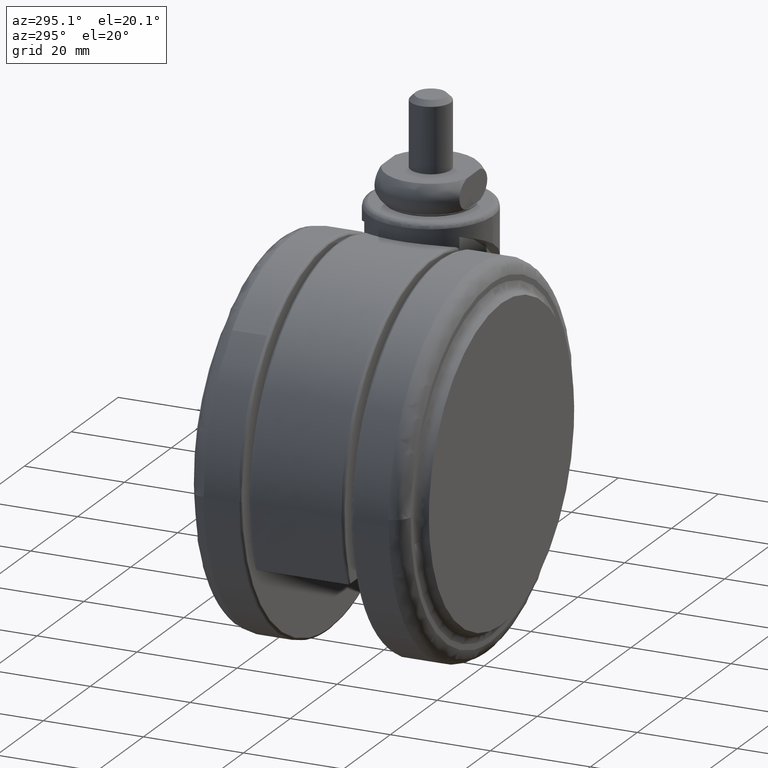
[diagram: clean part render]
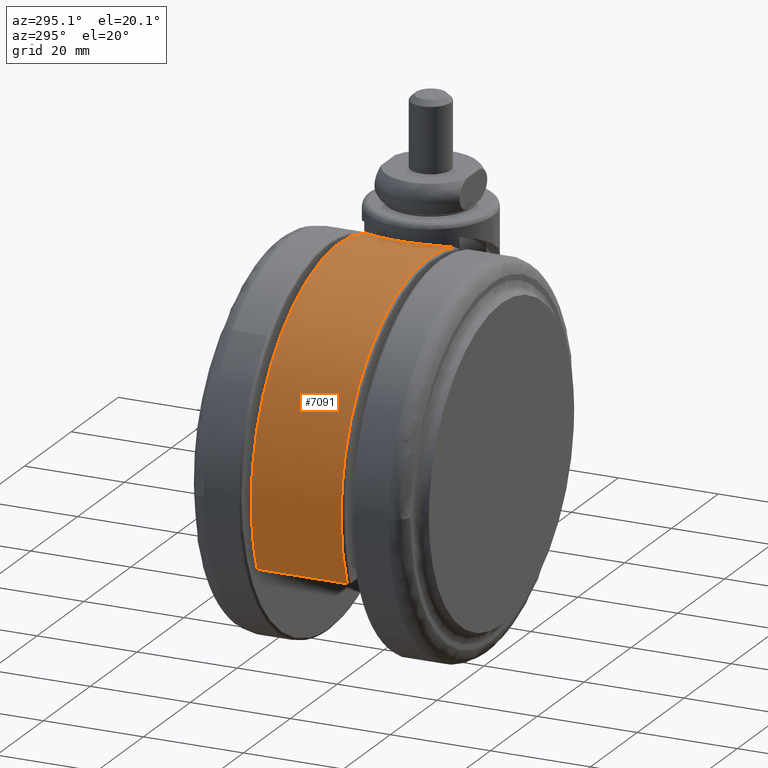
[diagram: same view with one face highlighted and labeled with its STEP entity id]
A machine part, auxiliary view. The second image highlights one B-rep face of the part: STEP entity #7091.
In plain terms, the highlighted face is a freeform B-spline surface patch.
Its self-contained STEP definition (entity closure, byte-faithful):
#5652=CARTESIAN_POINT('',(-8.674675786448901,-8.999999999999810,-4.751055519666890));
#5653=VERTEX_POINT('',#5652);
#5675=CARTESIAN_POINT('',(-54.869513614197501,-8.999999999999799,-54.297355554936097));
#5676=VERTEX_POINT('',#5675);
#5677=CARTESIAN_POINT('',(-54.869513614197501,-8.999999999999799,-54.297355554936097));
#5678=CARTESIAN_POINT('',(-55.720248823207811,-8.999999999999814,-52.147973614396392));
#5679=CARTESIAN_POINT('',(-56.975744369376528,-8.999999999999773,-47.850427429676017));
#5680=CARTESIAN_POINT('',(-57.595306881068673,-8.999999999999831,-42.027690033489037));
#5681=CARTESIAN_POINT('',(-57.427733159560837,-8.999999999999757,-37.234977341685727));
#5682=CARTESIAN_POINT('',(-56.925823505620542,-8.999999999999826,-33.688220369290867));
#5683=CARTESIAN_POINT('',(-56.064490506159821,-8.999999999999998,-29.986789896995379));
#5684=CARTESIAN_POINT('',(-54.813833322030128,-8.999999999999153,-26.334433439819520));
#5685=CARTESIAN_POINT('',(-52.814269493395777,-9.000000000000316,-22.158797817862439));
#5686=CARTESIAN_POINT('',(-50.055825268455251,-8.999999999999517,-17.832940092839191));
#5687=CARTESIAN_POINT('',(-46.379302779214413,-8.999999999999895,-13.637564030287310));
#5688=CARTESIAN_POINT('',(-42.445029253030732,-8.999999999999782,-10.343380855342060));
#5689=CARTESIAN_POINT('',(-38.932532660018893,-8.999999999999801,-8.062105824059874));
#5690=CARTESIAN_POINT('',(-35.656721885519573,-8.999999999999798,-6.360200248944931));
#5691=CARTESIAN_POINT('',(-32.435457289783542,-8.999999999999801,-5.065068195586559));
#5692=CARTESIAN_POINT('',(-28.529055851854380,-8.999999999999799,-3.900057964833836));
#5693=CARTESIAN_POINT('',(-24.130107418665329,-8.999999999999805,-3.110717135898655));
#5694=CARTESIAN_POINT('',(-19.390446971807918,-8.999999999999849,-2.916146345884326));
#5695=CARTESIAN_POINT('',(-14.225284200919051,-8.999999999999433,-3.319011138755044));
#5696=CARTESIAN_POINT('',(-10.773354734251150,-9.000000000000510,-4.085949346466580));
#5697=CARTESIAN_POINT('',(-8.674675786448901,-8.999999999999810,-4.751055519666890));
#5698=B_SPLINE_CURVE_WITH_KNOTS('',3,(#5677,#5678,#5679,#5680,#5681,#5682,#5683,#5684,#5685,#5686,#5687,#5688,#5689,#5690,#5691,#5692,#5693,#5694,#5695,#5696,#5697),.UNSPECIFIED.,.F.,.U.,(4,1,1,1,1,1,1,1,1,1,1,1,1,1,1,1,1,1,4),(0.000000086136822,6.934819541731670,13.374340462885900,17.502254621349490,21.299915373167089,24.106887325080439,28.895248600238169,32.858019113649981,37.976619856811752,44.250964111092713,49.534640390614697,53.332333627842161,56.799765716631271,60.597423577270192,63.734626075042947,69.018338266588913,73.971826449717895,77.934596225441993,84.539192122613500),.UNSPECIFIED.);
#5699=EDGE_CURVE('',#5676,#5653,#5698,.T.);
#5972=CARTESIAN_POINT('',(-8.674675786448539,9.000000000000231,-4.751055519667011));
#5973=VERTEX_POINT('',#5972);
#5995=CARTESIAN_POINT('',(-8.674675786448901,-8.999999999999810,-4.751055519666890));
#5996=CARTESIAN_POINT('',(-8.970850773073885,-8.714530890552302,-4.657226798393186));
#5997=CARTESIAN_POINT('',(-9.252655060606976,-8.414769664938927,-4.571988486004324));
#5998=CARTESIAN_POINT('',(-9.787020634850826,-7.786796599215655,-4.416451295872517));
#5999=CARTESIAN_POINT('',(-10.039585289135321,-7.458586998773201,-4.346154862904913));
#6000=CARTESIAN_POINT('',(-10.395563625991480,-6.944472989146506,-4.250587635245981));
#6001=CARTESIAN_POINT('',(-10.510405481264909,-6.769462337275924,-4.220381529327296));
#6002=CARTESIAN_POINT('',(-10.676762380754180,-6.501369547565522,-4.177410328805453));
#6003=CARTESIAN_POINT('',(-10.731302316806341,-6.410947599218801,-4.163458298947532));
#6004=CARTESIAN_POINT('',(-10.837832752653661,-6.229163648526988,-4.136450793873014));
#6005=CARTESIAN_POINT('',(-10.889864577870640,-6.137742640001775,-4.123384241108742));
#6006=CARTESIAN_POINT('',(-11.143905993339111,-5.678021049604253,-4.060139097162558));
#6007=CARTESIAN_POINT('',(-11.327606335155689,-5.301890920254538,-4.016194059839395));
#6008=CARTESIAN_POINT('',(-11.656485337909800,-4.533327936696246,-3.939580543423517));
#6009=CARTESIAN_POINT('',(-11.801664357991269,-4.140894919904614,-3.906915356761662));
#6010=CARTESIAN_POINT('',(-11.990115935593529,-3.539942505199687,-3.865373005497649));
#6011=CARTESIAN_POINT('',(-12.048038310060241,-3.337570659335289,-3.852773124003085));
#6012=CARTESIAN_POINT('',(-12.127443571529581,-3.030884965822633,-3.835663262711155));
#6013=CARTESIAN_POINT('',(-12.152665006436409,-2.928134813592185,-3.830258609184464));
#6014=CARTESIAN_POINT('',(-12.200583640071700,-2.721580255448937,-3.820036741907980));
#6015=CARTESIAN_POINT('',(-12.223307283977411,-2.617635798980999,-3.815213970681946));
#6016=CARTESIAN_POINT('',(-12.329993050254011,-2.097951747530207,-3.792662814478638));
#6017=CARTESIAN_POINT('',(-12.393564986314480,-1.681081739534984,-3.779514913835495));
#6018=CARTESIAN_POINT('',(-12.478468457459790,-0.845170894659355,-3.762029971224271));
#6019=CARTESIAN_POINT('',(-12.499796753707949,-0.426129873382842,-3.757695345736333));
#6020=CARTESIAN_POINT('',(-12.500200362179401,0.414121308757823,-3.757612959485591));
#6021=CARTESIAN_POINT('',(-12.479279146333710,0.835331283150746,-3.761863694447446));
#6022=CARTESIAN_POINT('',(-12.425893495955870,1.363243366005219,-3.772857046856367));
#6023=CARTESIAN_POINT('',(-12.413831054348490,1.469036653888233,-3.775345785669010));
#6024=CARTESIAN_POINT('',(-12.387089511722520,1.679667694798051,-3.780879907987707));
#6025=CARTESIAN_POINT('',(-12.343037434420051,1.994427631348166,-3.790019459617555));
#6026=CARTESIAN_POINT('',(-12.287314187957159,2.305669606718565,-3.801684754395490));
#6027=CARTESIAN_POINT('',(-12.160581555255730,2.923536453278747,-3.828471866413233));
#6028=CARTESIAN_POINT('',(-12.055748647585631,3.329303534445367,-3.850917721061410));
#6029=CARTESIAN_POINT('',(-11.805917665054890,4.128637252675255,-3.905965293139805));
#6030=CARTESIAN_POINT('',(-11.660919630663960,4.522204078569321,-3.938564243392174));
#6031=CARTESIAN_POINT('',(-11.454149908147880,5.006349558734460,-3.986711335706703));
#6032=CARTESIAN_POINT('',(-11.411516891210031,5.102787030261968,-3.996712543817837));
#6033=CARTESIAN_POINT('',(-11.323670101600809,5.294870032842502,-4.017492729901623));
#6034=CARTESIAN_POINT('',(-11.278386299924250,5.390655162707557,-4.028288658922895));
#6035=CARTESIAN_POINT('',(-11.139302021640891,5.675437685751141,-4.061735413755931));
#6036=CARTESIAN_POINT('',(-11.042230041583270,5.861998752422219,-4.085452698476276));
#6037=CARTESIAN_POINT('',(-10.738328079956419,6.412004733762562,-4.161108651242706));
#6038=CARTESIAN_POINT('',(-10.518840342388611,6.765795050788595,-4.217535803243282));
#6039=CARTESIAN_POINT('',(-10.047267744207440,7.448113566141866,-4.344050043090325));
#6040=CARTESIAN_POINT('',(-9.795179665873153,7.776640005527839,-4.414134610090460));
#6041=CARTESIAN_POINT('',(-9.392821365606080,8.250322745771342,-4.531162499106678));
#6042=CARTESIAN_POINT('',(-9.254657744481564,8.405027162898973,-4.572159670522938));
#6043=CARTESIAN_POINT('',(-9.041315848997629,8.632230338261671,-4.636888528590841));
#6044=CARTESIAN_POINT('',(-8.969114336917484,8.707226228021488,-4.659026187830642));
#6045=CARTESIAN_POINT('',(-8.823099583061481,8.855151852002560,-4.704291606584337));
#6046=CARTESIAN_POINT('',(-8.749285816400112,8.928086908861664,-4.727418939872294));
#6047=CARTESIAN_POINT('',(-8.674675786448525,9.000000000000235,-4.751055519666958));
#6048=B_SPLINE_CURVE_WITH_KNOTS('',3,(#5995,#5996,#5997,#5998,#5999,#6000,#6001,#6002,#6003,#6004,#6005,#6006,#6007,#6008,#6009,#6010,#6011,#6012,#6013,#6014,#6015,#6016,#6017,#6018,#6019,#6020,#6021,#6022,#6023,#6024,#6025,#6026,#6027,#6028,#6029,#6030,#6031,#6032,#6033,#6034,#6035,#6036,#6037,#6038,#6039,#6040,#6041,#6042,#6043,#6044,#6045,#6046,#6047),.UNSPECIFIED.,.F.,.U.,(4,2,2,2,2,2,2,2,2,2,2,2,2,2,2,1,2,2,2,2,2,2,2,2,2,2,4),(0.0,0.062500000000000,0.125000000000001,0.156250000000001,0.171875000000001,0.187500000000001,0.250000000000001,0.312500000000001,0.343750000000001,0.359375000000001,0.375000000000001,0.437500000000001,0.500000000000001,0.562500000000001,0.578125000000001,0.593750000000001,0.625000000000001,0.687500000000000,0.750000000000000,0.765625000000000,0.781250000000000,0.812500000000000,0.875000000000000,0.937500000000000,0.968750000000000,0.984375000000000,1.0),.UNSPECIFIED.);
#6049=EDGE_CURVE('',#5653,#5973,#6048,.T.);
#6338=CARTESIAN_POINT('',(-54.869513614197501,9.000000000000199,-54.297355554936097));
#6339=VERTEX_POINT('',#6338);
#6340=CARTESIAN_POINT('',(-54.869513614197501,9.000000000000199,-54.297355554936097));
#6341=CARTESIAN_POINT('',(-54.869513614197501,-8.999999999999799,-54.297355554936097));
#6342=QUASI_UNIFORM_CURVE('',1,(#6340,#6341),.UNSPECIFIED.,.F.,.U.);
#6343=EDGE_CURVE('',#6339,#5676,#6342,.T.);
#7042=CARTESIAN_POINT('',(-54.278763357156762,9.450000000000230,-55.705800955690449));
#7043=CARTESIAN_POINT('',(-54.278763357156762,-9.461249999999813,-55.705800955690449));
#7044=CARTESIAN_POINT('',(-64.535205607180686,9.450000000000230,-32.584483124462416));
#7045=CARTESIAN_POINT('',(-64.535205607180686,-9.461249999999813,-32.584483124462416));
#7046=CARTESIAN_POINT('',(-46.939623909607377,9.450000000000230,-14.413477356900669));
#7047=CARTESIAN_POINT('',(-46.939623909607377,-9.461249999999813,-14.413477356900669));
#7048=CARTESIAN_POINT('',(-29.344042212034061,9.450000000000230,3.757528410661074));
#7049=CARTESIAN_POINT('',(-29.344042212034061,-9.461249999999813,3.757528410661074));
#7050=CARTESIAN_POINT('',(-5.904758124211526,9.450000000000230,-5.749832281512582));
#7051=CARTESIAN_POINT('',(-5.904758124211526,-9.461249999999813,-5.749832281512582));
#7059=(BOUNDED_SURFACE()B_SPLINE_SURFACE(1,2,((#7042,#7044,#7046,#7048,#7050),(#7043,#7045,#7047,#7049,#7051)),.UNSPECIFIED.,.F.,.F.,.U.)B_SPLINE_SURFACE_WITH_KNOTS((2,2),(3,2,3),(0.0,18.911250000000049),(0.0,45.859602218799047,91.719204437598108),.UNSPECIFIED.)GEOMETRIC_REPRESENTATION_ITEM()RATIONAL_B_SPLINE_SURFACE(((1.0,0.829037572555042,1.0,0.829037572555042,1.0),(1.0,0.829037572555042,1.0,0.829037572555042,1.0)))REPRESENTATION_ITEM('')SURFACE());
#7060=ORIENTED_EDGE('',*,*,#6049,.T.);
#7061=CARTESIAN_POINT('',(-8.674675786448539,9.000000000000231,-4.751055519667011));
#7062=CARTESIAN_POINT('',(-11.193065276506051,9.000000000000231,-3.952718267834507));
#7063=CARTESIAN_POINT('',(-14.880822962467080,9.000000000000227,-3.201614730824559));
#7064=CARTESIAN_POINT('',(-20.217696962705379,9.000000000000233,-2.927015003761376));
#7065=CARTESIAN_POINT('',(-23.851834644784709,9.000000000000179,-3.132390643877163));
#7066=CARTESIAN_POINT('',(-27.822572499999900,9.000000000000222,-3.763932563994802));
#7067=CARTESIAN_POINT('',(-31.237519670550721,9.000000000000156,-4.652636631785780));
#7068=CARTESIAN_POINT('',(-34.900957610621717,9.000000000000167,-6.023507991769993));
#7069=CARTESIAN_POINT('',(-38.515197539616267,9.000000000000178,-7.791366518356942));
#7070=CARTESIAN_POINT('',(-41.993941951420680,9.000000000000195,-10.029097805621550));
#7071=CARTESIAN_POINT('',(-44.983720735573932,9.000000000000215,-12.466197608393101));
#7072=CARTESIAN_POINT('',(-47.780268144973483,9.000000000000194,-15.200489061866239));
#7073=CARTESIAN_POINT('',(-50.058998224546500,9.000000000000188,-17.968453019356598));
#7074=CARTESIAN_POINT('',(-52.256812253591853,9.000000000000256,-21.268836513863722));
#7075=CARTESIAN_POINT('',(-53.906732737412241,9.000000000000146,-24.325011993939292));
#7076=CARTESIAN_POINT('',(-55.336534784828288,8.999999999999979,-27.788083051354992));
#7077=CARTESIAN_POINT('',(-56.440506628694791,8.999999999999755,-31.368377148613568));
#7078=CARTESIAN_POINT('',(-57.190608980662738,9.000000000000449,-35.153794565406187));
#7079=CARTESIAN_POINT('',(-57.514110344526500,9.000000000000142,-38.831902798160641));
#7080=CARTESIAN_POINT('',(-57.503342198303528,9.000000000000057,-43.183369834814243));
#7081=CARTESIAN_POINT('',(-56.851805502954321,9.000000000000972,-48.334047308753732));
#7082=CARTESIAN_POINT('',(-55.639177817330683,8.999999999998630,-52.352658450936197));
#7083=CARTESIAN_POINT('',(-54.869513614197501,9.000000000000199,-54.297355554936097));
#7084=B_SPLINE_CURVE_WITH_KNOTS('',3,(#7061,#7062,#7063,#7064,#7065,#7066,#7067,#7068,#7069,#7070,#7071,#7072,#7073,#7074,#7075,#7076,#7077,#7078,#7079,#7080,#7081,#7082,#7083),.UNSPECIFIED.,.F.,.U.,(4,1,1,1,1,1,1,1,1,1,1,1,1,1,1,1,1,1,1,1,4),(0.000000085778183,7.925545410598019,11.227830890532530,16.016199823726250,18.823178822191220,23.281308409502660,26.583619170975521,30.546397515566309,35.334784314543931,38.967324098890060,42.104532492491522,47.057933717865112,49.699781096079647,53.992775350349604,57.460213862887450,60.927652661224862,65.220672263432007,69.018338266529256,71.990407226957274,78.264813851049055,84.539192122615219),.UNSPECIFIED.);
#7085=EDGE_CURVE('',#5973,#6339,#7084,.T.);
#7086=ORIENTED_EDGE('',*,*,#7085,.T.);
#7087=ORIENTED_EDGE('',*,*,#6343,.T.);
#7088=ORIENTED_EDGE('',*,*,#5699,.T.);
#7089=EDGE_LOOP('',(#7060,#7086,#7087,#7088));
#7090=FACE_OUTER_BOUND('',#7089,.T.);
#7091=ADVANCED_FACE('',(#7090),#7059,.T.);